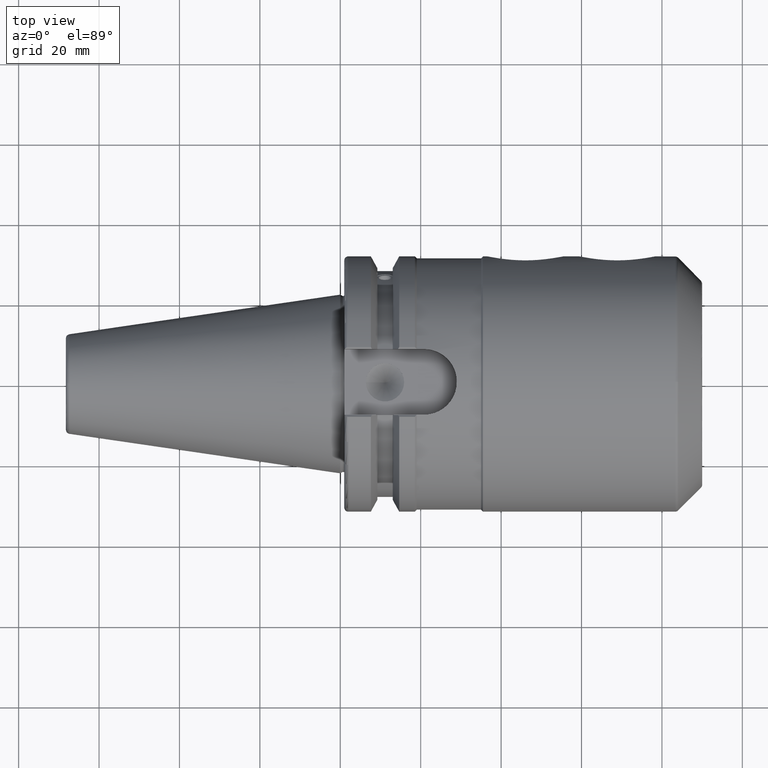
[diagram: clean part render]
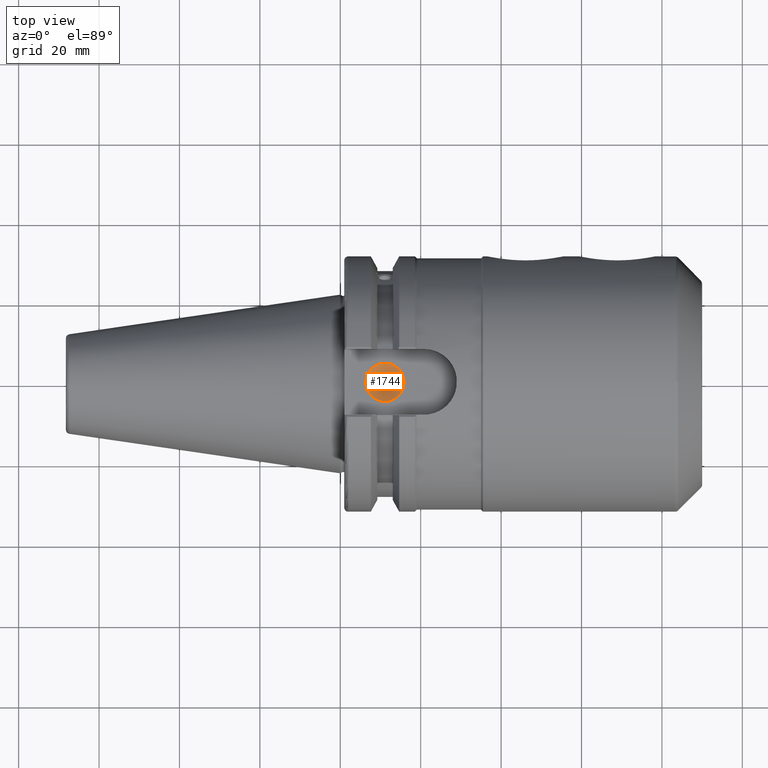
[diagram: same view with one face highlighted and labeled with its STEP entity id]
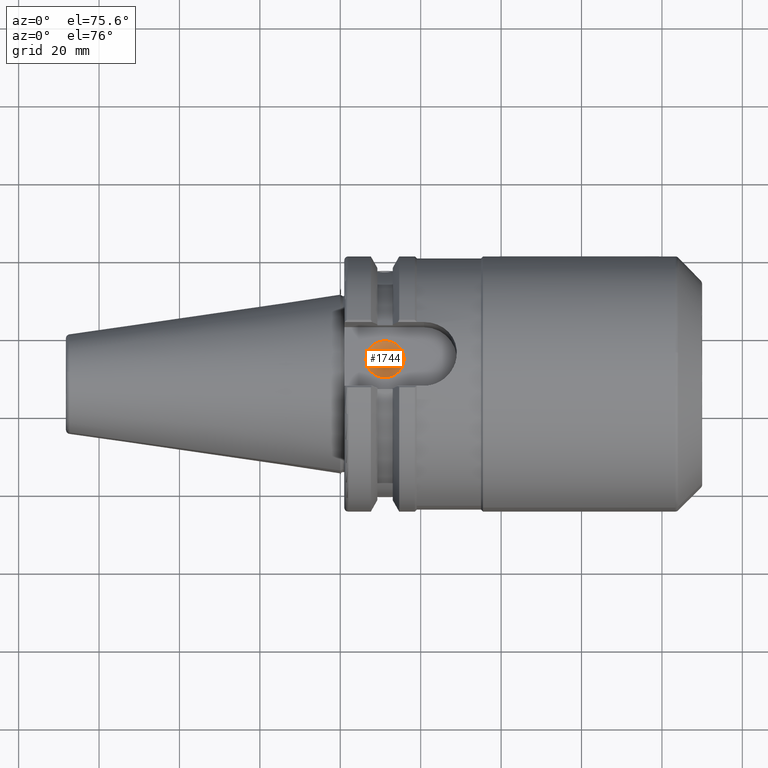
[diagram: same view with one face highlighted and labeled with its STEP entity id]
A machine part, top view. The second image highlights one B-rep face of the part: STEP entity #1744.
A second angle (auxiliary view) of the same face is appended — the face is thin or edge-on in the first view.
In plain terms, the highlighted conical surface has half-angle 59 deg.
Its self-contained STEP definition (entity closure, byte-faithful):
#78=CONICAL_SURFACE('',#1955,2.38125,1.02974425867665);
#208=LINE('',#3525,#300);
#300=VECTOR('',#2420,2.38125);
#434=FACE_OUTER_BOUND('',#545,.T.);
#545=EDGE_LOOP('',(#1549,#1550,#1551));
#643=CIRCLE('',#1956,4.7625);
#826=VERTEX_POINT('',#3522);
#827=VERTEX_POINT('',#3524);
#1079=EDGE_CURVE('',#826,#826,#643,.T.);
#1080=EDGE_CURVE('',#826,#827,#208,.T.);
#1549=ORIENTED_EDGE('',*,*,#1079,.T.);
#1550=ORIENTED_EDGE('',*,*,#1080,.T.);
#1551=ORIENTED_EDGE('',*,*,#1080,.F.);
#1744=ADVANCED_FACE('',(#434),#78,.F.);
#1955=AXIS2_PLACEMENT_3D('',#3521,#2416,#2417);
#1956=AXIS2_PLACEMENT_3D('',#3523,#2418,#2419);
#2416=DIRECTION('center_axis',(0.,0.,1.));
#2417=DIRECTION('ref_axis',(1.,0.,0.));
#2418=DIRECTION('center_axis',(0.,0.,1.));
#2419=DIRECTION('ref_axis',(1.,0.,0.));
#2420=DIRECTION('',(0.857167300702112,1.04972719113862E-16,-0.515038074910054));
#3521=CARTESIAN_POINT('Origin',(11.127,0.,23.1692006509406));
#3522=CARTESIAN_POINT('',(6.3645,-5.83238038093927E-16,24.6));
#3523=CARTESIAN_POINT('Origin',(11.127,0.,24.6));
#3524=CARTESIAN_POINT('',(11.127,0.,21.7384013018812));
#3525=CARTESIAN_POINT('',(8.74575,-2.91619019046964E-16,23.1692006509406));